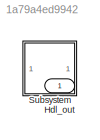
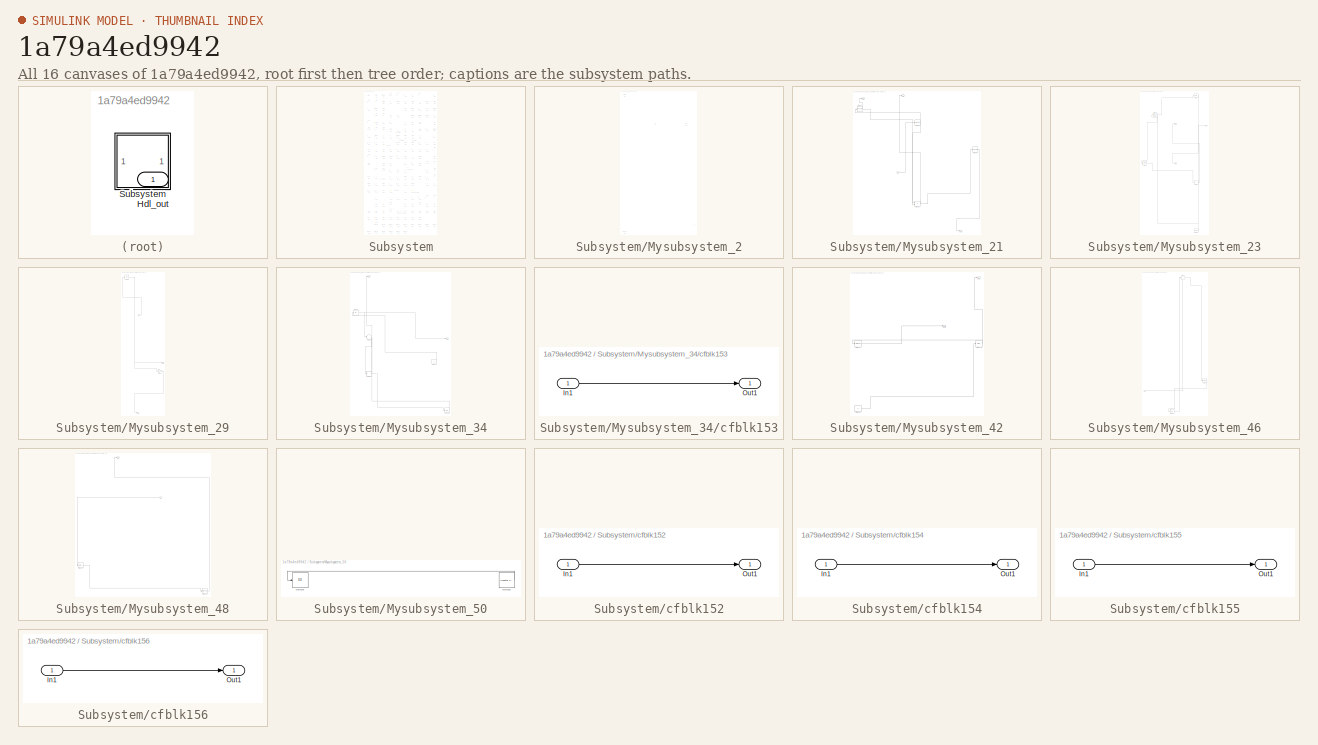
[diagram: thumbnail index - all 16 canvases of the model, root first then tree order]
MODEL slx_1a79a4ed9942
KIND model
CONFIG AbsTol = auto
CONFIG EnableMultiTasking = off
CONFIG FixedStep = auto
CONFIG MaxStep = auto
CONFIG MinStep = auto
CONFIG RelTol = 1e-3
CONFIG SampleTimeConstraint = Unconstrained
CONFIG SolverName = VariableStepAuto
CONFIG StartTime = 0.0
CONFIG StopTime = 10.0
BLOCK [Outport] Hdl_out
  OutDataTypeStr = uint8
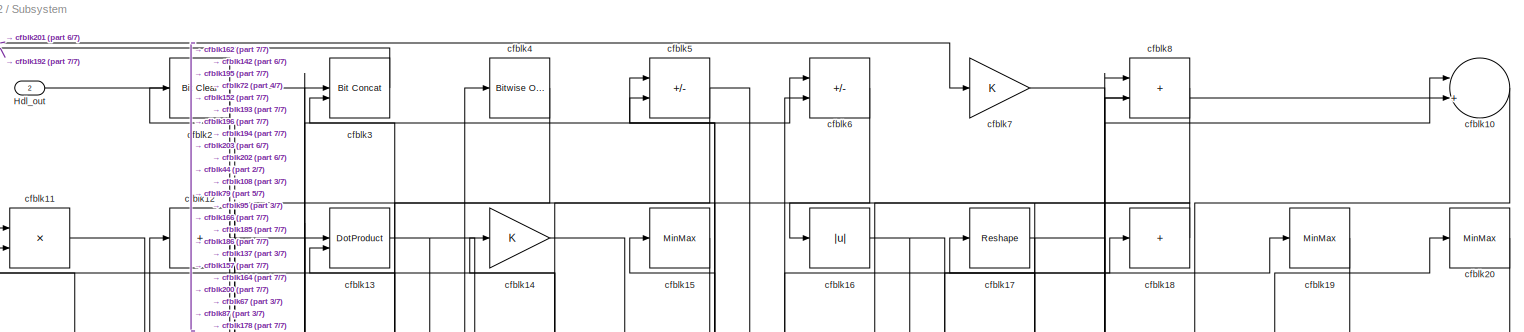
[diagram: Subsystem - part 1/7, full width, top band]
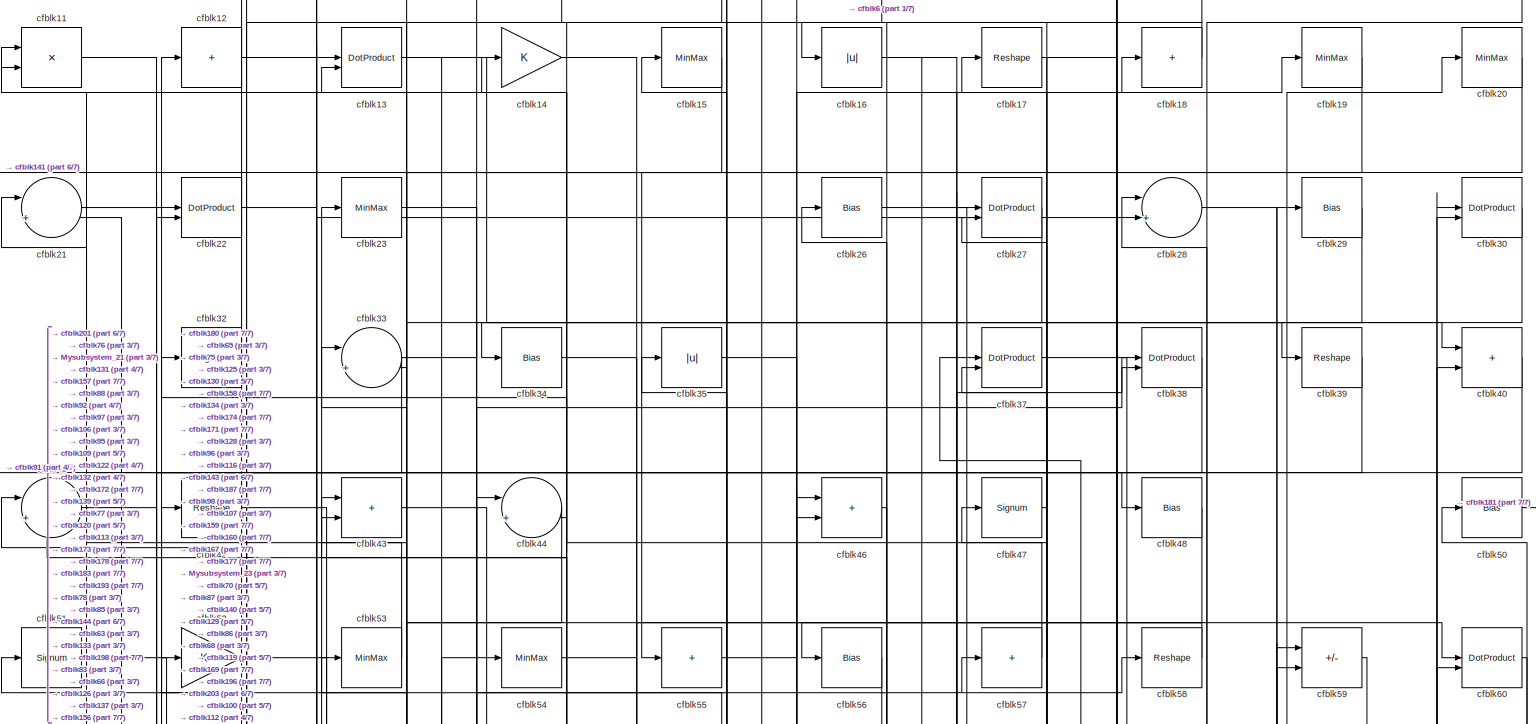
[diagram: Subsystem - part 2/7, full width, top band]
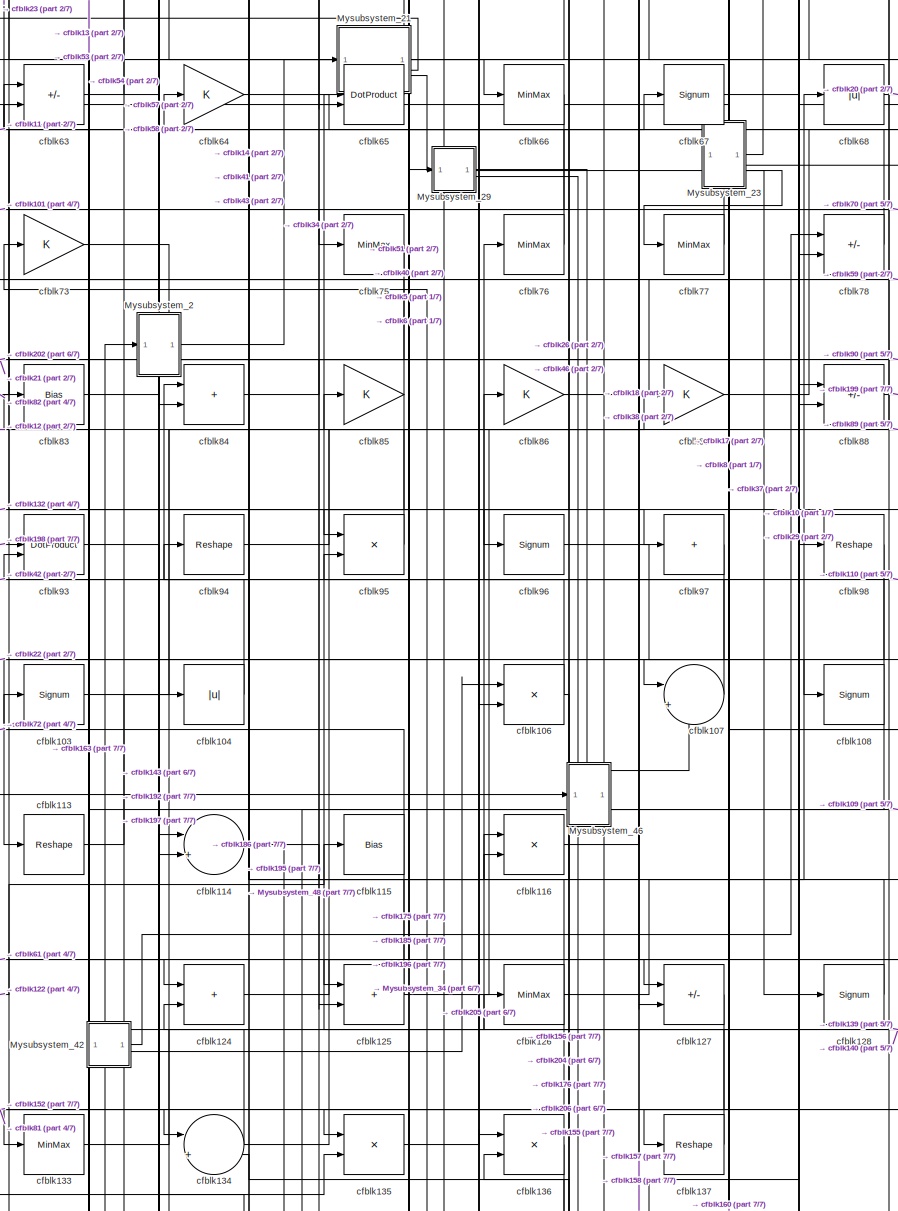
[diagram: Subsystem - part 3/7, central region]
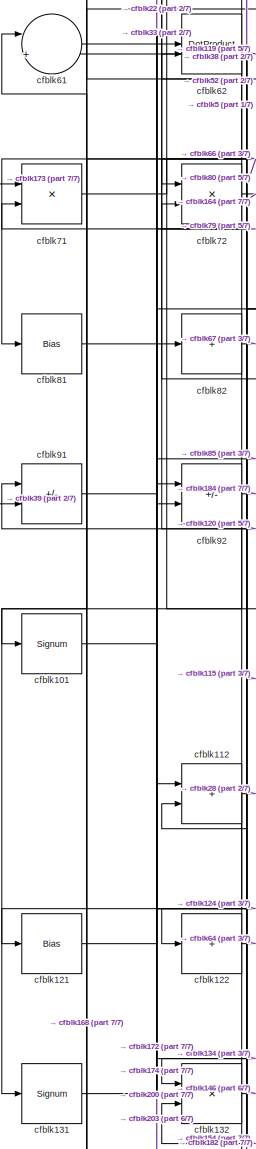
[diagram: Subsystem - part 4/7, middle left region]
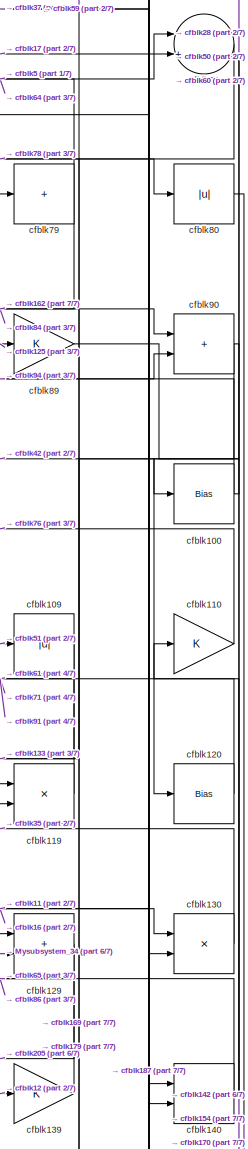
[diagram: Subsystem - part 5/7, middle right region]
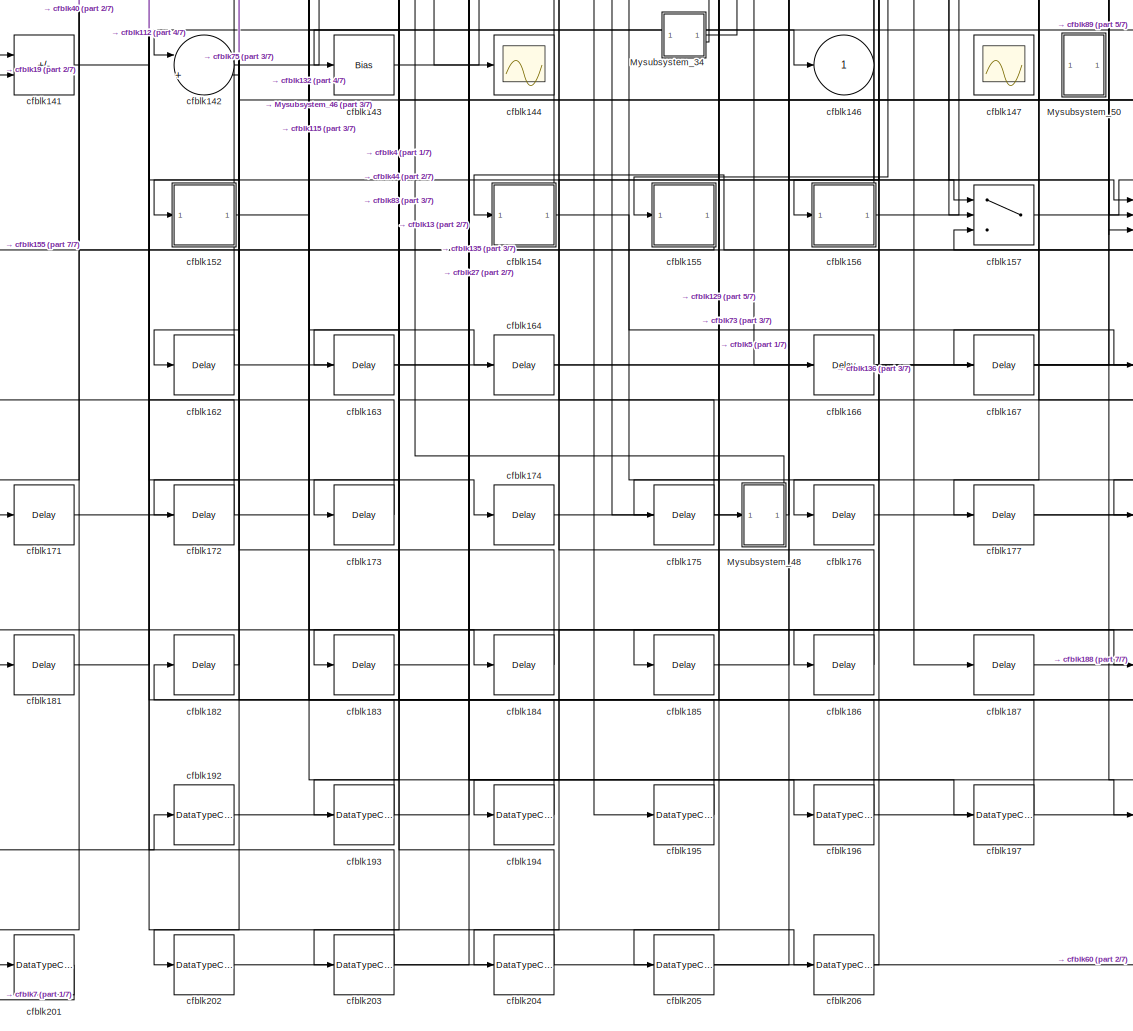
[diagram: Subsystem - part 6/7, bottom center region]
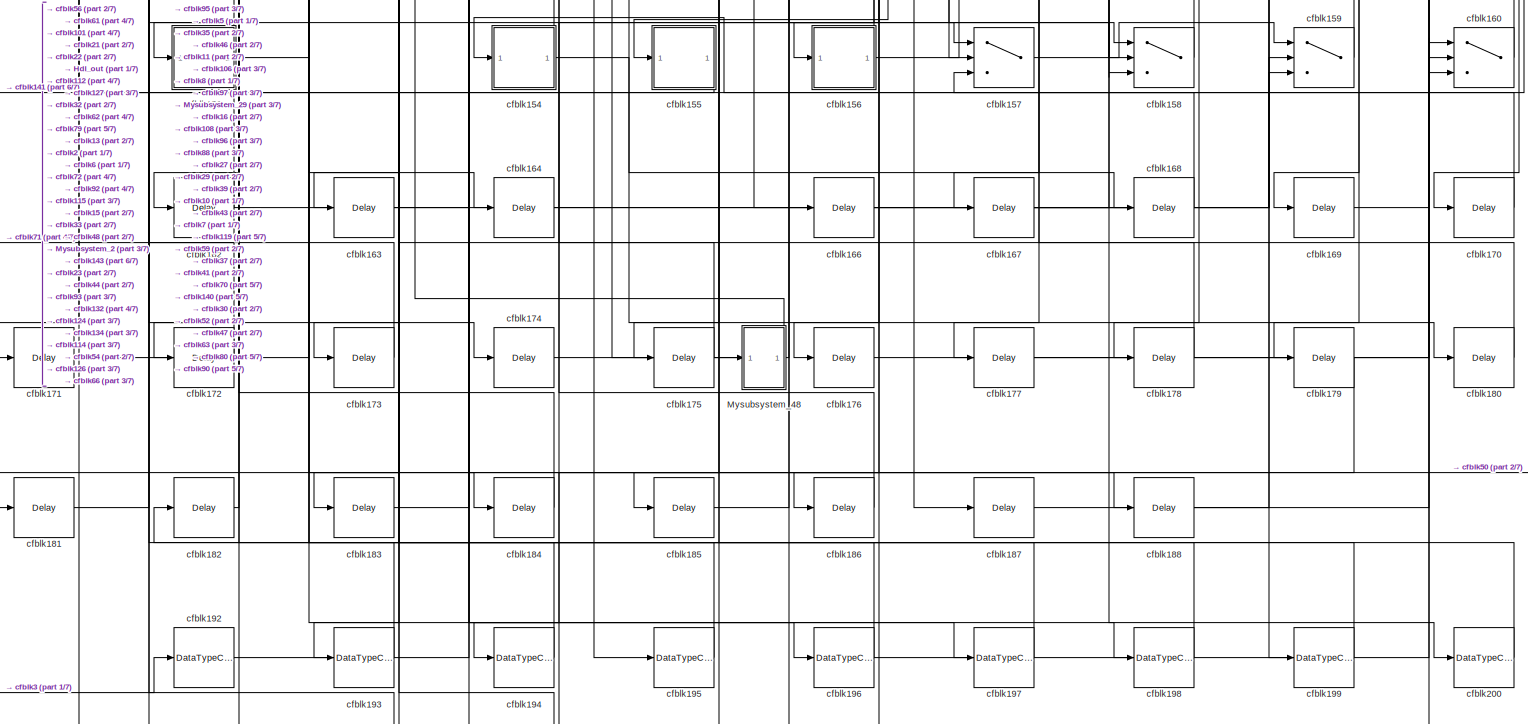
[diagram: Subsystem - part 7/7, full width, bottom band]
BLOCK [SubSystem] Subsystem
BLOCK [Outport] Subsystem/Hdl_out
  OutDataTypeStr = uint8
  Port = 2
BLOCK [SubSystem] Subsystem/Mysubsystem_2
  RTWFcnName = Mysubsystem_2
  RTWFcnNameOpts = User specified
  RTWFileNameOpts = Use function name
  RTWSystemCode = Reusable function
  TreatAsAtomicUnit = on
BLOCK [Inport] Subsystem/Mysubsystem_2/In1
BLOCK [Outport] Subsystem/Mysubsystem_2/Out1
BLOCK [Reference] Subsystem/Mysubsystem_2/cfblk1  REF=simulink/Logic and Bit
Operations/Bitwise
Operator
  LibrarySourceBlock = hdlsllib/Logic and Bit\nOperations/Bitwise\nOperator
  SourceBlock = simulink/Logic and Bit\nOperations/Bitwise\nOperator
  SourceType = Bitwise Operator
BLOCK [DataTypeConversion] Subsystem/Mysubsystem_2/cfblk191
  OutDataTypeStr = uint8
  RndMeth = Floor
  SaturateOnIntegerOverflow = off
BLOCK [Bias] Subsystem/Mysubsystem_2/cfblk49
  Bias = 0.0
  SaturateOnIntegerOverflow = off
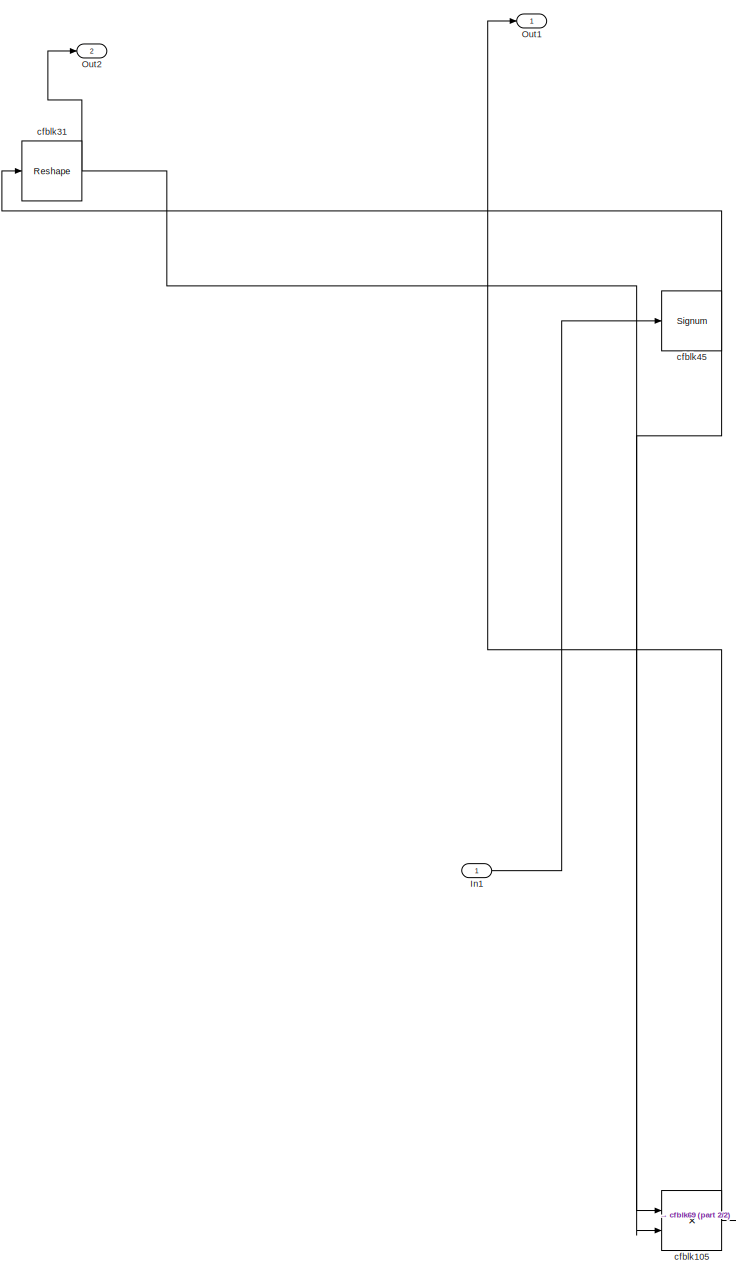
[diagram: Subsystem/Mysubsystem_21 - part 1/2, left side, full height]
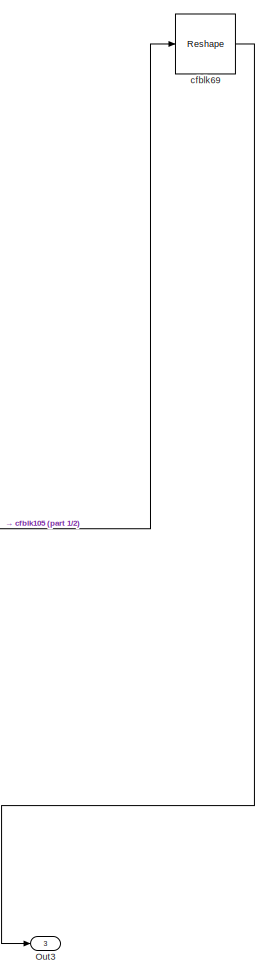
[diagram: Subsystem/Mysubsystem_21 - part 2/2, bottom right region]
BLOCK [SubSystem] Subsystem/Mysubsystem_21
  RTWFcnName = Mysubsystem_21
  RTWFcnNameOpts = User specified
  RTWFileNameOpts = Use function name
  RTWSystemCode = Reusable function
  TreatAsAtomicUnit = on
BLOCK [Inport] Subsystem/Mysubsystem_21/In1
BLOCK [Outport] Subsystem/Mysubsystem_21/Out1
BLOCK [Outport] Subsystem/Mysubsystem_21/Out2
  Port = 2
BLOCK [Outport] Subsystem/Mysubsystem_21/Out3
  Port = 3
BLOCK [Product] Subsystem/Mysubsystem_21/cfblk105
  Inputs = */
  RndMeth = Zero
  SaturateOnIntegerOverflow = on
BLOCK [Reshape] Subsystem/Mysubsystem_21/cfblk31
BLOCK [Signum] Subsystem/Mysubsystem_21/cfblk45
BLOCK [Reshape] Subsystem/Mysubsystem_21/cfblk69
BLOCK [SubSystem] Subsystem/Mysubsystem_23
  RTWFcnName = Mysubsystem_23
  RTWFcnNameOpts = User specified
  RTWFileNameOpts = Use function name
  RTWSystemCode = Reusable function
  TreatAsAtomicUnit = on
BLOCK [Outport] Subsystem/Mysubsystem_23/Out1
BLOCK [Outport] Subsystem/Mysubsystem_23/Out3
  Port = 3
BLOCK [Reference] Subsystem/Mysubsystem_23/cfblk149  REF=hdlsllib/Sources/Counter
Limited
  SourceBlock = hdlsllib/Sources/Counter\nLimited
  SourceType = Counter Limited
BLOCK [MinMax] Subsystem/Mysubsystem_23/cfblk25
BLOCK [Signum] Subsystem/Mysubsystem_23/cfblk74
BLOCK [Bias] Subsystem/Mysubsystem_23/cfblk9
  Bias = 0.0
  SaturateOnIntegerOverflow = off
BLOCK [Sum] Subsystem/Mysubsystem_23/cfblk99
  IconShape = rectangular
  Inputs = +
BLOCK [Outport] Subsystem/Mysubsystem_23/y
  Port = 2
BLOCK [SubSystem] Subsystem/Mysubsystem_29
  RTWFcnName = Mysubsystem_29
  RTWFcnNameOpts = User specified
  RTWFileNameOpts = Use function name
  RTWSystemCode = Reusable function
  TreatAsAtomicUnit = on
BLOCK [Inport] Subsystem/Mysubsystem_29/In1
BLOCK [Outport] Subsystem/Mysubsystem_29/Out1
BLOCK [Outport] Subsystem/Mysubsystem_29/Out2
  Port = 2
BLOCK [Gain] Subsystem/Mysubsystem_29/cfblk117
BLOCK [Bias] Subsystem/Mysubsystem_29/cfblk24
  Bias = 0.0
  SaturateOnIntegerOverflow = off
BLOCK [SubSystem] Subsystem/Mysubsystem_34
  RTWFcnName = Mysubsystem_34
  RTWFcnNameOpts = User specified
  RTWFileNameOpts = Use function name
  RTWSystemCode = Reusable function
  TreatAsAtomicUnit = on
BLOCK [Outport] Subsystem/Mysubsystem_34/Out1
BLOCK [Outport] Subsystem/Mysubsystem_34/Out2
  Port = 2
BLOCK [Abs] Subsystem/Mysubsystem_34/cfblk102
  SaturateOnIntegerOverflow = off
BLOCK [Sum] Subsystem/Mysubsystem_34/cfblk123
  Inputs = |++
BLOCK [Constant] Subsystem/Mysubsystem_34/cfblk148
  SampleTime = -1
BLOCK [SubSystem] Subsystem/Mysubsystem_34/cfblk153
  LibrarySourceBlock = hdlsllib/Ports &\nSubsystems/Subsystem
BLOCK [Inport] Subsystem/Mysubsystem_34/cfblk153/In1
BLOCK [Outport] Subsystem/Mysubsystem_34/cfblk153/Out1
BLOCK [Delay] Subsystem/Mysubsystem_34/cfblk189
  InputPortMap = u0
  SampleTime = 1
BLOCK [SubSystem] Subsystem/Mysubsystem_42
  RTWFcnName = Mysubsystem_42
  RTWFcnNameOpts = User specified
  RTWFileNameOpts = Use function name
  RTWSystemCode = Reusable function
  TreatAsAtomicUnit = on
BLOCK [Outport] Subsystem/Mysubsystem_42/Out1
BLOCK [Outport] Subsystem/Mysubsystem_42/Out2
  Port = 2
BLOCK [Signum] Subsystem/Mysubsystem_42/cfblk111
BLOCK [Bias] Subsystem/Mysubsystem_42/cfblk118
  Bias = 0.0
  SaturateOnIntegerOverflow = off
BLOCK [Constant] Subsystem/Mysubsystem_42/cfblk151
  SampleTime = -1
BLOCK [SubSystem] Subsystem/Mysubsystem_46
  RTWFcnName = Mysubsystem_46
  RTWFcnNameOpts = User specified
  RTWFileNameOpts = Use function name
  RTWSystemCode = Reusable function
  TreatAsAtomicUnit = on
BLOCK [Inport] Subsystem/Mysubsystem_46/In1
BLOCK [Signum] Subsystem/Mysubsystem_46/cfblk138
BLOCK [Delay] Subsystem/Mysubsystem_46/cfblk165
  InputPortMap = u0
  SampleTime = 1
BLOCK [Sum] Subsystem/Mysubsystem_46/cfblk36
  Inputs = |++
BLOCK [SubSystem] Subsystem/Mysubsystem_48
  RTWFcnName = Mysubsystem_48
  RTWFcnNameOpts = User specified
  RTWFileNameOpts = Use function name
  RTWSystemCode = Reusable function
  TreatAsAtomicUnit = on
BLOCK [Inport] Subsystem/Mysubsystem_48/In1
BLOCK [Outport] Subsystem/Mysubsystem_48/Out1
BLOCK [Delay] Subsystem/Mysubsystem_48/cfblk161
  InputPortMap = u0
  SampleTime = 1
BLOCK [DataTypeConversion] Subsystem/Mysubsystem_48/cfblk190
  OutDataTypeStr = boolean
  RndMeth = Floor
  SaturateOnIntegerOverflow = off
BLOCK [SubSystem] Subsystem/Mysubsystem_50
  RTWFcnName = Mysubsystem_50
  RTWFcnNameOpts = User specified
  RTWFileNameOpts = Use function name
  RTWSystemCode = Reusable function
  TreatAsAtomicUnit = on
BLOCK [Display] Subsystem/Mysubsystem_50/cfblk145
  Decimation = 1
BLOCK [Reference] Subsystem/Mysubsystem_50/cfblk150  REF=hdlsllib/Sources/Counter
Free-Running
  SourceBlock = hdlsllib/Sources/Counter\nFree-Running
  SourceType = Counter Free-Running
BLOCK [Sum] Subsystem/cfblk10
  Inputs = |++
  OutDataTypeStr = uint8
BLOCK [Bias] Subsystem/cfblk100
  Bias = 0.0
  SaturateOnIntegerOverflow = off
BLOCK [Signum] Subsystem/cfblk101
BLOCK [Signum] Subsystem/cfblk103
BLOCK [Abs] Subsystem/cfblk104
  OutDataTypeStr = uint8
  SaturateOnIntegerOverflow = off
BLOCK [Product] Subsystem/cfblk106
  Inputs = */
  OutDataTypeStr = uint8
  RndMeth = Zero
  SaturateOnIntegerOverflow = on
BLOCK [Sum] Subsystem/cfblk107
  Inputs = |++
  OutDataTypeStr = uint8
BLOCK [Signum] Subsystem/cfblk108
BLOCK [Abs] Subsystem/cfblk109
  OutDataTypeStr = uint8
  SaturateOnIntegerOverflow = off
BLOCK [Product] Subsystem/cfblk11
  Inputs = */
  OutDataTypeStr = uint8
  RndMeth = Zero
  SaturateOnIntegerOverflow = on
BLOCK [Gain] Subsystem/cfblk110
  OutDataTypeStr = uint8
BLOCK [Sum] Subsystem/cfblk112
  IconShape = rectangular
  OutDataTypeStr = uint8
BLOCK [Reshape] Subsystem/cfblk113
BLOCK [Sum] Subsystem/cfblk114
  Inputs = |++
  OutDataTypeStr = uint8
BLOCK [Bias] Subsystem/cfblk115
  Bias = 0.0
  SaturateOnIntegerOverflow = off
BLOCK [Product] Subsystem/cfblk116
  Inputs = */
  OutDataTypeStr = uint8
  RndMeth = Zero
  SaturateOnIntegerOverflow = on
BLOCK [Product] Subsystem/cfblk119
  Inputs = */
  OutDataTypeStr = uint8
  RndMeth = Zero
  SaturateOnIntegerOverflow = on
BLOCK [Sum] Subsystem/cfblk12
  IconShape = rectangular
  Inputs = +
  OutDataTypeStr = uint8
BLOCK [Bias] Subsystem/cfblk120
  Bias = 0.0
  SaturateOnIntegerOverflow = off
BLOCK [Bias] Subsystem/cfblk121
  Bias = 0.0
  SaturateOnIntegerOverflow = off
BLOCK [Sum] Subsystem/cfblk122
  IconShape = rectangular
  Inputs = +
  OutDataTypeStr = uint8
BLOCK [Sum] Subsystem/cfblk124
  IconShape = rectangular
  OutDataTypeStr = uint8
BLOCK [Sum] Subsystem/cfblk125
  IconShape = rectangular
  OutDataTypeStr = uint8
BLOCK [MinMax] Subsystem/cfblk126
  OutDataTypeStr = uint8
BLOCK [Sum] Subsystem/cfblk127
  IconShape = rectangular
  Inputs = +-
  OutDataTypeStr = uint8
BLOCK [Signum] Subsystem/cfblk128
BLOCK [Sum] Subsystem/cfblk129
  IconShape = rectangular
  OutDataTypeStr = uint8
BLOCK [DotProduct] Subsystem/cfblk13
  OutDataTypeStr = uint8
BLOCK [Product] Subsystem/cfblk130
  Inputs = */
  OutDataTypeStr = uint8
  RndMeth = Zero
  SaturateOnIntegerOverflow = on
BLOCK [Signum] Subsystem/cfblk131
BLOCK [Product] Subsystem/cfblk132
  Inputs = */
  OutDataTypeStr = uint8
  RndMeth = Zero
  SaturateOnIntegerOverflow = on
BLOCK [MinMax] Subsystem/cfblk133
  OutDataTypeStr = uint8
BLOCK [Sum] Subsystem/cfblk134
  Inputs = |++
  OutDataTypeStr = uint8
BLOCK [Product] Subsystem/cfblk135
  Inputs = */
  OutDataTypeStr = uint8
  RndMeth = Zero
  SaturateOnIntegerOverflow = on
BLOCK [Product] Subsystem/cfblk136
  Inputs = */
  OutDataTypeStr = uint8
  RndMeth = Zero
  SaturateOnIntegerOverflow = on
BLOCK [Reshape] Subsystem/cfblk137
BLOCK [Gain] Subsystem/cfblk139
  OutDataTypeStr = uint8
BLOCK [Gain] Subsystem/cfblk14
  OutDataTypeStr = uint8
BLOCK [Sum] Subsystem/cfblk140
  IconShape = rectangular
  OutDataTypeStr = uint8
BLOCK [Sum] Subsystem/cfblk141
  IconShape = rectangular
  Inputs = +-
  OutDataTypeStr = uint8
BLOCK [Sum] Subsystem/cfblk142
  Inputs = |++
  OutDataTypeStr = uint8
BLOCK [Bias] Subsystem/cfblk143
  Bias = 0.0
  SaturateOnIntegerOverflow = off
BLOCK [Scope] Subsystem/cfblk144
  Floating = off
  NumInputPorts = 1
  ScopeSpecificationString = Simulink.scopes.TimeScopeBlockCfg('CurrentConfiguration', extmgr.ConfigurationSet(extmgr.Configuration('Core','General UI',true),extmgr.Configuration('Core','Source UI',true),extmgr.Configuration('Sources','WiredSimulink',true,'DataLoggingVariableName','ScopeData1','DataLoggingSaveFormat','Array','DataLoggingLimitDataPoints',true,'DataLoggingDecimation','1'),extmgr.Configuration('Visuals','Time Do...<+868ch>
BLOCK [Outport] Subsystem/cfblk146
  OutDataTypeStr = uint8
  VectorParamsAs1DForOutWhenUnconnected = off
BLOCK [Scope] Subsystem/cfblk147
  Floating = on
  NumInputPorts = 1
  ScopeSpecificationString = Simulink.scopes.TimeScopeBlockCfg('CurrentConfiguration', extmgr.ConfigurationSet(extmgr.Configuration('Core','General UI',true,'FigureColor',[0.156862745098039 0.156862745098039 0.156862745098039]),extmgr.Configuration('Core','Source UI',true),extmgr.Configuration('Sources','WiredSimulink',true,'DataLoggingSaveFormat','StructureWithTime','DataLoggingLimitDataPoints',true,'DataLoggingDecimation','...<+2674ch>
BLOCK [MinMax] Subsystem/cfblk15
  OutDataTypeStr = uint8
BLOCK [SubSystem] Subsystem/cfblk152
  LibrarySourceBlock = hdlsllib/Ports &\nSubsystems/Subsystem
BLOCK [Inport] Subsystem/cfblk152/In1
BLOCK [Outport] Subsystem/cfblk152/Out1
BLOCK [SubSystem] Subsystem/cfblk154
  LibrarySourceBlock = hdlsllib/Ports &\nSubsystems/Subsystem
BLOCK [Inport] Subsystem/cfblk154/In1
BLOCK [Outport] Subsystem/cfblk154/Out1
BLOCK [SubSystem] Subsystem/cfblk155
  LibrarySourceBlock = hdlsllib/Ports &\nSubsystems/Subsystem
BLOCK [Inport] Subsystem/cfblk155/In1
BLOCK [Outport] Subsystem/cfblk155/Out1
BLOCK [SubSystem] Subsystem/cfblk156
  LibrarySourceBlock = hdlsllib/Ports &\nSubsystems/Subsystem
BLOCK [Inport] Subsystem/cfblk156/In1
BLOCK [Outport] Subsystem/cfblk156/Out1
BLOCK [Switch] Subsystem/cfblk157
  InputSameDT = off
  OutDataTypeStr = uint8
  SaturateOnIntegerOverflow = off
BLOCK [Switch] Subsystem/cfblk158
  InputSameDT = off
  OutDataTypeStr = uint8
  SaturateOnIntegerOverflow = off
BLOCK [Switch] Subsystem/cfblk159
  InputSameDT = off
  OutDataTypeStr = uint8
  SaturateOnIntegerOverflow = off
BLOCK [Abs] Subsystem/cfblk16
  OutDataTypeStr = uint8
  SaturateOnIntegerOverflow = off
BLOCK [Switch] Subsystem/cfblk160
  InputSameDT = off
  OutDataTypeStr = uint8
  SaturateOnIntegerOverflow = off
BLOCK [Delay] Subsystem/cfblk162
  InputPortMap = u0
  SampleTime = 1
BLOCK [Delay] Subsystem/cfblk163
  InputPortMap = u0
  SampleTime = 1
BLOCK [Delay] Subsystem/cfblk164
  InputPortMap = u0
  SampleTime = 1
BLOCK [Delay] Subsystem/cfblk166
  InputPortMap = u0
  SampleTime = 1
BLOCK [Delay] Subsystem/cfblk167
  InputPortMap = u0
  SampleTime = 1
BLOCK [Delay] Subsystem/cfblk168
  InputPortMap = u0
  SampleTime = 1
BLOCK [Delay] Subsystem/cfblk169
  InputPortMap = u0
  SampleTime = 1
BLOCK [Reshape] Subsystem/cfblk17
BLOCK [Delay] Subsystem/cfblk170
  InputPortMap = u0
  SampleTime = 1
BLOCK [Delay] Subsystem/cfblk171
  InputPortMap = u0
  SampleTime = 1
BLOCK [Delay] Subsystem/cfblk172
  InputPortMap = u0
  SampleTime = 1
BLOCK [Delay] Subsystem/cfblk173
  InputPortMap = u0
  SampleTime = 1
BLOCK [Delay] Subsystem/cfblk174
  InputPortMap = u0
  SampleTime = 1
BLOCK [Delay] Subsystem/cfblk175
  InputPortMap = u0
  SampleTime = 1
BLOCK [Delay] Subsystem/cfblk176
  InputPortMap = u0
  SampleTime = 1
BLOCK [Delay] Subsystem/cfblk177
  InputPortMap = u0
  SampleTime = 1
BLOCK [Delay] Subsystem/cfblk178
  InputPortMap = u0
  SampleTime = 1
BLOCK [Delay] Subsystem/cfblk179
  InputPortMap = u0
  SampleTime = 1
BLOCK [Sum] Subsystem/cfblk18
  IconShape = rectangular
  Inputs = +
  OutDataTypeStr = uint8
BLOCK [Delay] Subsystem/cfblk180
  InputPortMap = u0
  SampleTime = 1
BLOCK [Delay] Subsystem/cfblk181
  InputPortMap = u0
  SampleTime = 1
BLOCK [Delay] Subsystem/cfblk182
  InputPortMap = u0
  SampleTime = 1
BLOCK [Delay] Subsystem/cfblk183
  InputPortMap = u0
  SampleTime = 1
BLOCK [Delay] Subsystem/cfblk184
  InputPortMap = u0
  SampleTime = 1
BLOCK [Delay] Subsystem/cfblk185
  InputPortMap = u0
  SampleTime = 1
BLOCK [Delay] Subsystem/cfblk186
  InputPortMap = u0
  SampleTime = 1
BLOCK [Delay] Subsystem/cfblk187
  InputPortMap = u0
  SampleTime = 1
BLOCK [Delay] Subsystem/cfblk188
  InputPortMap = u0
  SampleTime = 1
BLOCK [MinMax] Subsystem/cfblk19
  OutDataTypeStr = uint8
BLOCK [DataTypeConversion] Subsystem/cfblk192
  OutDataTypeStr = uint8
  RndMeth = Floor
  SaturateOnIntegerOverflow = off
BLOCK [DataTypeConversion] Subsystem/cfblk193
  OutDataTypeStr = uint8
  RndMeth = Floor
  SaturateOnIntegerOverflow = off
BLOCK [DataTypeConversion] Subsystem/cfblk194
  OutDataTypeStr = uint8
  RndMeth = Floor
  SaturateOnIntegerOverflow = off
BLOCK [DataTypeConversion] Subsystem/cfblk195
  OutDataTypeStr = uint8
  RndMeth = Floor
  SaturateOnIntegerOverflow = off
BLOCK [DataTypeConversion] Subsystem/cfblk196
  OutDataTypeStr = uint8
  RndMeth = Floor
  SaturateOnIntegerOverflow = off
BLOCK [DataTypeConversion] Subsystem/cfblk197
  OutDataTypeStr = uint8
  RndMeth = Floor
  SaturateOnIntegerOverflow = off
BLOCK [DataTypeConversion] Subsystem/cfblk198
  OutDataTypeStr = uint8
  RndMeth = Floor
  SaturateOnIntegerOverflow = off
BLOCK [DataTypeConversion] Subsystem/cfblk199
  OutDataTypeStr = uint8
  RndMeth = Floor
  SaturateOnIntegerOverflow = off
BLOCK [Reference] Subsystem/cfblk2  REF=simulink/Logic and Bit
Operations/Bit Clear
  LibrarySourceBlock = hdlsllib/Logic and Bit\nOperations/Bit Clear
  SourceBlock = simulink/Logic and Bit\nOperations/Bit Clear
  SourceType = Bit Clear
BLOCK [MinMax] Subsystem/cfblk20
  OutDataTypeStr = uint8
BLOCK [DataTypeConversion] Subsystem/cfblk200
  OutDataTypeStr = uint8
  RndMeth = Floor
  SaturateOnIntegerOverflow = off
BLOCK [DataTypeConversion] Subsystem/cfblk201
  OutDataTypeStr = uint8
  RndMeth = Floor
  SaturateOnIntegerOverflow = off
BLOCK [DataTypeConversion] Subsystem/cfblk202
  OutDataTypeStr = uint8
  RndMeth = Floor
  SaturateOnIntegerOverflow = off
BLOCK [DataTypeConversion] Subsystem/cfblk203
  OutDataTypeStr = uint8
  RndMeth = Floor
  SaturateOnIntegerOverflow = off
BLOCK [DataTypeConversion] Subsystem/cfblk204
  OutDataTypeStr = uint8
  RndMeth = Floor
  SaturateOnIntegerOverflow = off
BLOCK [DataTypeConversion] Subsystem/cfblk205
  OutDataTypeStr = uint8
  RndMeth = Floor
  SaturateOnIntegerOverflow = off
BLOCK [DataTypeConversion] Subsystem/cfblk206
  OutDataTypeStr = uint8
  RndMeth = Floor
  SaturateOnIntegerOverflow = off
BLOCK [Sum] Subsystem/cfblk21
  Inputs = |++
  OutDataTypeStr = uint8
BLOCK [DotProduct] Subsystem/cfblk22
  OutDataTypeStr = uint8
BLOCK [MinMax] Subsystem/cfblk23
  OutDataTypeStr = uint8
BLOCK [Bias] Subsystem/cfblk26
  Bias = 0.0
  SaturateOnIntegerOverflow = off
BLOCK [DotProduct] Subsystem/cfblk27
  OutDataTypeStr = uint8
BLOCK [Sum] Subsystem/cfblk28
  Inputs = |++
  OutDataTypeStr = uint8
BLOCK [Bias] Subsystem/cfblk29
  Bias = 0.0
  SaturateOnIntegerOverflow = off
BLOCK [Reference] Subsystem/cfblk3  REF=hdlsllib/Logic and Bit
Operations/Bit Concat
  SourceBlock = hdlsllib/Logic and Bit\nOperations/Bit Concat
  SourceType = Bit Concat
BLOCK [DotProduct] Subsystem/cfblk30
  OutDataTypeStr = uint8
BLOCK [Signum] Subsystem/cfblk32
BLOCK [Sum] Subsystem/cfblk33
  Inputs = |++
  OutDataTypeStr = uint8
BLOCK [Bias] Subsystem/cfblk34
  Bias = 0.0
  SaturateOnIntegerOverflow = off
BLOCK [Abs] Subsystem/cfblk35
  OutDataTypeStr = uint8
  SaturateOnIntegerOverflow = off
BLOCK [DotProduct] Subsystem/cfblk37
  OutDataTypeStr = uint8
BLOCK [DotProduct] Subsystem/cfblk38
  OutDataTypeStr = uint8
BLOCK [Reshape] Subsystem/cfblk39
BLOCK [Reference] Subsystem/cfblk4  REF=simulink/Logic and Bit
Operations/Bitwise
Operator
  LibrarySourceBlock = hdlsllib/Logic and Bit\nOperations/Bitwise\nOperator
  SourceBlock = simulink/Logic and Bit\nOperations/Bitwise\nOperator
  SourceType = Bitwise Operator
BLOCK [Sum] Subsystem/cfblk40
  IconShape = rectangular
  OutDataTypeStr = uint8
BLOCK [Sum] Subsystem/cfblk41
  Inputs = |++
  OutDataTypeStr = uint8
BLOCK [Reshape] Subsystem/cfblk42
BLOCK [Sum] Subsystem/cfblk43
  IconShape = rectangular
  OutDataTypeStr = uint8
BLOCK [Sum] Subsystem/cfblk44
  Inputs = |++
  OutDataTypeStr = uint8
BLOCK [Sum] Subsystem/cfblk46
  IconShape = rectangular
  OutDataTypeStr = uint8
BLOCK [Signum] Subsystem/cfblk47
BLOCK [Bias] Subsystem/cfblk48
  Bias = 0.0
  SaturateOnIntegerOverflow = off
BLOCK [Sum] Subsystem/cfblk5
  IconShape = rectangular
  Inputs = +-
  OutDataTypeStr = uint8
BLOCK [Bias] Subsystem/cfblk50
  Bias = 0.0
  SaturateOnIntegerOverflow = off
BLOCK [Signum] Subsystem/cfblk51
BLOCK [Gain] Subsystem/cfblk52
  OutDataTypeStr = uint8
BLOCK [MinMax] Subsystem/cfblk53
  OutDataTypeStr = uint8
BLOCK [MinMax] Subsystem/cfblk54
  OutDataTypeStr = uint8
BLOCK [Sum] Subsystem/cfblk55
  IconShape = rectangular
  Inputs = +
  OutDataTypeStr = uint8
BLOCK [Bias] Subsystem/cfblk56
  Bias = 0.0
  SaturateOnIntegerOverflow = off
BLOCK [Sum] Subsystem/cfblk57
  IconShape = rectangular
  Inputs = +
  OutDataTypeStr = uint8
BLOCK [Reshape] Subsystem/cfblk58
BLOCK [Sum] Subsystem/cfblk59
  IconShape = rectangular
  Inputs = +-
  OutDataTypeStr = uint8
BLOCK [Sum] Subsystem/cfblk6
  IconShape = rectangular
  Inputs = +-
  OutDataTypeStr = uint8
BLOCK [DotProduct] Subsystem/cfblk60
  OutDataTypeStr = uint8
BLOCK [Sum] Subsystem/cfblk61
  Inputs = |++
  OutDataTypeStr = uint8
BLOCK [DotProduct] Subsystem/cfblk62
  OutDataTypeStr = uint8
BLOCK [Sum] Subsystem/cfblk63
  IconShape = rectangular
  Inputs = +-
  OutDataTypeStr = uint8
BLOCK [Gain] Subsystem/cfblk64
  OutDataTypeStr = uint8
BLOCK [DotProduct] Subsystem/cfblk65
  OutDataTypeStr = uint8
BLOCK [MinMax] Subsystem/cfblk66
  OutDataTypeStr = uint8
BLOCK [Signum] Subsystem/cfblk67
BLOCK [Abs] Subsystem/cfblk68
  OutDataTypeStr = uint8
  SaturateOnIntegerOverflow = off
BLOCK [Gain] Subsystem/cfblk7
  OutDataTypeStr = uint8
BLOCK [Sum] Subsystem/cfblk70
  Inputs = |++
  OutDataTypeStr = uint8
BLOCK [Product] Subsystem/cfblk71
  Inputs = */
  OutDataTypeStr = uint8
  RndMeth = Zero
  SaturateOnIntegerOverflow = on
BLOCK [Product] Subsystem/cfblk72
  Inputs = */
  OutDataTypeStr = uint8
  RndMeth = Zero
  SaturateOnIntegerOverflow = on
BLOCK [Gain] Subsystem/cfblk73
  OutDataTypeStr = uint8
BLOCK [MinMax] Subsystem/cfblk75
  OutDataTypeStr = uint8
BLOCK [MinMax] Subsystem/cfblk76
  OutDataTypeStr = uint8
BLOCK [MinMax] Subsystem/cfblk77
  OutDataTypeStr = uint8
BLOCK [Sum] Subsystem/cfblk78
  IconShape = rectangular
  Inputs = +-
  OutDataTypeStr = uint8
BLOCK [Sum] Subsystem/cfblk79
  IconShape = rectangular
  Inputs = +
  OutDataTypeStr = uint8
BLOCK [Sum] Subsystem/cfblk8
  IconShape = rectangular
  OutDataTypeStr = uint8
BLOCK [Abs] Subsystem/cfblk80
  OutDataTypeStr = uint8
  SaturateOnIntegerOverflow = off
BLOCK [Bias] Subsystem/cfblk81
  Bias = 0.0
  SaturateOnIntegerOverflow = off
BLOCK [Sum] Subsystem/cfblk82
  IconShape = rectangular
  Inputs = +
  OutDataTypeStr = uint8
BLOCK [Bias] Subsystem/cfblk83
  Bias = 0.0
  SaturateOnIntegerOverflow = off
BLOCK [Sum] Subsystem/cfblk84
  IconShape = rectangular
  OutDataTypeStr = uint8
BLOCK [Gain] Subsystem/cfblk85
  OutDataTypeStr = uint8
BLOCK [Gain] Subsystem/cfblk86
  OutDataTypeStr = uint8
BLOCK [Gain] Subsystem/cfblk87
  OutDataTypeStr = uint8
BLOCK [Sum] Subsystem/cfblk88
  IconShape = rectangular
  Inputs = +-
  OutDataTypeStr = uint8
BLOCK [Gain] Subsystem/cfblk89
  OutDataTypeStr = uint8
BLOCK [Sum] Subsystem/cfblk90
  IconShape = rectangular
  OutDataTypeStr = uint8
BLOCK [Sum] Subsystem/cfblk91
  IconShape = rectangular
  Inputs = +-
  OutDataTypeStr = uint8
BLOCK [Sum] Subsystem/cfblk92
  IconShape = rectangular
  Inputs = +-
  OutDataTypeStr = uint8
BLOCK [DotProduct] Subsystem/cfblk93
  OutDataTypeStr = uint8
BLOCK [Reshape] Subsystem/cfblk94
BLOCK [Product] Subsystem/cfblk95
  Inputs = */
  OutDataTypeStr = uint8
  RndMeth = Zero
  SaturateOnIntegerOverflow = on
BLOCK [Signum] Subsystem/cfblk96
BLOCK [Sum] Subsystem/cfblk97
  IconShape = rectangular
  Inputs = +
  OutDataTypeStr = uint8
BLOCK [Reshape] Subsystem/cfblk98
LINE Subsystem/Mysubsystem_2/In1:1 -> Subsystem/Mysubsystem_2/cfblk1:1
LINE Subsystem/Mysubsystem_2/cfblk191:1 -> Subsystem/Mysubsystem_2/cfblk49:1
LINE Subsystem/Mysubsystem_2/cfblk1:1 -> Subsystem/Mysubsystem_2/cfblk191:1
LINE Subsystem/Mysubsystem_2/cfblk49:1 -> Subsystem/Mysubsystem_2/Out1:1
LINE Subsystem/Mysubsystem_21/In1:1 -> Subsystem/Mysubsystem_21/cfblk45:1
NET Subsystem/Mysubsystem_21/cfblk105:1 -> Subsystem/Mysubsystem_21/Out1:1, Subsystem/Mysubsystem_21/cfblk69:1
NET Subsystem/Mysubsystem_21/cfblk31:1 -> Subsystem/Mysubsystem_21/Out2:1, Subsystem/Mysubsystem_21/cfblk105:1
NET Subsystem/Mysubsystem_21/cfblk45:1 -> Subsystem/Mysubsystem_21/cfblk105:2, Subsystem/Mysubsystem_21/cfblk31:1
LINE Subsystem/Mysubsystem_21/cfblk69:1 -> Subsystem/Mysubsystem_21/Out3:1
LINE Subsystem/Mysubsystem_21:1 -> Subsystem/Mysubsystem_29:1
LINE Subsystem/Mysubsystem_21:2 -> Subsystem/cfblk21:2
LINE Subsystem/Mysubsystem_21:3 -> Subsystem/cfblk128:1
NET Subsystem/Mysubsystem_23/cfblk149:1 -> Subsystem/Mysubsystem_23/cfblk25:1, Subsystem/Mysubsystem_23/y:1
NET Subsystem/Mysubsystem_23/cfblk25:1 -> Subsystem/Mysubsystem_23/cfblk74:1, Subsystem/Mysubsystem_23/cfblk9:1
LINE Subsystem/Mysubsystem_23/cfblk74:1 -> Subsystem/Mysubsystem_23/cfblk99:1
LINE Subsystem/Mysubsystem_23/cfblk99:1 -> Subsystem/Mysubsystem_23/Out1:1
LINE Subsystem/Mysubsystem_23/cfblk9:1 -> Subsystem/Mysubsystem_23/Out3:1
LINE Subsystem/Mysubsystem_23:1 -> Subsystem/cfblk37:1
LINE Subsystem/Mysubsystem_23:2 -> Subsystem/cfblk40:2
LINE Subsystem/Mysubsystem_23:3 -> Subsystem/cfblk77:1
LINE Subsystem/Mysubsystem_29/In1:1 -> Subsystem/Mysubsystem_29/cfblk24:1
LINE Subsystem/Mysubsystem_29/cfblk117:1 -> Subsystem/Mysubsystem_29/Out2:1
NET Subsystem/Mysubsystem_29/cfblk24:1 -> Subsystem/Mysubsystem_29/Out1:1, Subsystem/Mysubsystem_29/cfblk117:1
LINE Subsystem/Mysubsystem_29:1 -> Subsystem/cfblk107:2
LINE Subsystem/Mysubsystem_29:2 -> Subsystem/cfblk155:1
LINE Subsystem/Mysubsystem_2:1 -> Subsystem/Mysubsystem_21:1
NET Subsystem/Mysubsystem_34/cfblk102:1 -> Subsystem/Mysubsystem_34/Out2:1, Subsystem/Mysubsystem_34/cfblk123:1
LINE Subsystem/Mysubsystem_34/cfblk123:1 -> Subsystem/Mysubsystem_34/cfblk153:1
LINE Subsystem/Mysubsystem_34/cfblk148:1 -> Subsystem/Mysubsystem_34/cfblk102:1
LINE Subsystem/Mysubsystem_34/cfblk153/In1:1 -> Subsystem/Mysubsystem_34/cfblk153/Out1:1
NET Subsystem/Mysubsystem_34/cfblk153:1 -> Subsystem/Mysubsystem_34/Out1:1, Subsystem/Mysubsystem_34/cfblk189:1
LINE Subsystem/Mysubsystem_34/cfblk189:1 -> Subsystem/Mysubsystem_34/cfblk123:2
LINE Subsystem/Mysubsystem_34:1 -> Subsystem/cfblk73:1
LINE Subsystem/Mysubsystem_34:2 -> Subsystem/cfblk129:2
LINE Subsystem/Mysubsystem_42/cfblk111:1 -> Subsystem/Mysubsystem_42/Out2:1
NET Subsystem/Mysubsystem_42/cfblk118:1 -> Subsystem/Mysubsystem_42/Out1:1, Subsystem/Mysubsystem_42/cfblk111:1
LINE Subsystem/Mysubsystem_42/cfblk151:1 -> Subsystem/Mysubsystem_42/cfblk118:1
LINE Subsystem/Mysubsystem_42:1 -> Subsystem/cfblk78:1
LINE Subsystem/Mysubsystem_42:2 -> Subsystem/cfblk106:1
LINE Subsystem/Mysubsystem_46/In1:1 -> Subsystem/Mysubsystem_46/cfblk36:2
LINE Subsystem/Mysubsystem_46/cfblk138:1 -> Subsystem/Mysubsystem_46/cfblk165:1
LINE Subsystem/Mysubsystem_46/cfblk165:1 -> Subsystem/Mysubsystem_46/cfblk36:1
LINE Subsystem/Mysubsystem_46/cfblk36:1 -> Subsystem/Mysubsystem_46/cfblk138:1
LINE Subsystem/Mysubsystem_48/In1:1 -> Subsystem/Mysubsystem_48/cfblk161:1
LINE Subsystem/Mysubsystem_48/cfblk161:1 -> Subsystem/Mysubsystem_48/cfblk190:1
LINE Subsystem/Mysubsystem_48/cfblk190:1 -> Subsystem/Mysubsystem_48/Out1:1
LINE Subsystem/Mysubsystem_48:1 -> Subsystem/Mysubsystem_2:1
LINE Subsystem/Mysubsystem_50/cfblk150:1 -> Subsystem/Mysubsystem_50/cfblk145:1
NET Subsystem/cfblk100:1 -> Subsystem/cfblk28:1, Subsystem/cfblk50:1
LINE Subsystem/cfblk101:1 -> Subsystem/cfblk174:1
LINE Subsystem/cfblk103:1 -> Subsystem/cfblk85:1
LINE Subsystem/cfblk104:1 -> Subsystem/cfblk63:1
NET Subsystem/cfblk106:1 -> Subsystem/cfblk156:1, Subsystem/cfblk42:1
LINE Subsystem/cfblk107:1 -> Subsystem/cfblk84:1
NET Subsystem/cfblk108:1 -> Subsystem/Mysubsystem_48:1, Subsystem/cfblk157:2, Subsystem/cfblk5:2
LINE Subsystem/cfblk109:1 -> Subsystem/cfblk133:1
LINE Subsystem/cfblk10:1 -> Subsystem/cfblk178:1
LINE Subsystem/cfblk110:1 -> Subsystem/cfblk76:1
NET Subsystem/cfblk112:1 -> Subsystem/cfblk121:1, Subsystem/cfblk28:2
NET Subsystem/cfblk113:1 -> Subsystem/cfblk104:1, Subsystem/cfblk13:2
NET Subsystem/cfblk114:1 -> Subsystem/cfblk116:2, Subsystem/cfblk195:1
NET Subsystem/cfblk115:1 -> Subsystem/cfblk163:1, Subsystem/cfblk72:2
LINE Subsystem/cfblk116:1 -> Subsystem/cfblk18:1
LINE Subsystem/cfblk119:1 -> Subsystem/cfblk61:2
NET Subsystem/cfblk11:1 -> Subsystem/cfblk130:2, Subsystem/cfblk48:1
NET Subsystem/cfblk120:1 -> Subsystem/cfblk71:2, Subsystem/cfblk91:1
LINE Subsystem/cfblk121:1 -> Subsystem/cfblk82:1
LINE Subsystem/cfblk122:1 -> Subsystem/cfblk64:1
LINE Subsystem/cfblk124:1 -> Subsystem/cfblk127:1
NET Subsystem/cfblk125:1 -> Subsystem/cfblk41:2, Subsystem/cfblk89:1
NET Subsystem/cfblk126:1 -> Subsystem/cfblk185:1, Subsystem/cfblk43:2, Subsystem/cfblk68:1
LINE Subsystem/cfblk127:1 -> Subsystem/cfblk152:1
NET Subsystem/cfblk128:1 -> Subsystem/cfblk116:1, Subsystem/cfblk26:1, Subsystem/cfblk94:1
LINE Subsystem/cfblk129:1 -> Subsystem/cfblk205:1
LINE Subsystem/cfblk12:1 -> Subsystem/cfblk139:1
LINE Subsystem/cfblk130:1 -> Subsystem/cfblk35:1
LINE Subsystem/cfblk131:1 -> Subsystem/cfblk22:2
NET Subsystem/cfblk132:1 -> Subsystem/cfblk146:1, Subsystem/cfblk52:1
NET Subsystem/cfblk133:1 -> Subsystem/cfblk126:1, Subsystem/cfblk38:2
NET Subsystem/cfblk134:1 -> Subsystem/cfblk103:1, Subsystem/cfblk46:1
LINE Subsystem/cfblk135:1 -> Subsystem/cfblk87:1
LINE Subsystem/cfblk136:1 -> Subsystem/cfblk204:1
LINE Subsystem/cfblk137:1 -> Subsystem/cfblk14:1
LINE Subsystem/cfblk139:1 -> Subsystem/cfblk65:1
NET Subsystem/cfblk13:1 -> Subsystem/cfblk144:1, Subsystem/cfblk40:1
NET Subsystem/cfblk140:1 -> Subsystem/cfblk110:1, Subsystem/cfblk86:1
LINE Subsystem/cfblk141:1 -> Subsystem/cfblk206:1
NET Subsystem/cfblk142:1 -> Subsystem/Mysubsystem_46:1, Subsystem/cfblk115:1
NET Subsystem/cfblk143:1 -> Subsystem/cfblk135:2, Subsystem/cfblk188:1, Subsystem/cfblk27:1
LINE Subsystem/cfblk14:1 -> Subsystem/cfblk65:2
LINE Subsystem/cfblk152/In1:1 -> Subsystem/cfblk152/Out1:1
LINE Subsystem/cfblk152:1 -> Subsystem/cfblk6:1
LINE Subsystem/cfblk154/In1:1 -> Subsystem/cfblk154/Out1:1
NET Subsystem/cfblk154:1 -> Subsystem/cfblk132:2, Subsystem/cfblk168:1
LINE Subsystem/cfblk155/In1:1 -> Subsystem/cfblk155/Out1:1
LINE Subsystem/cfblk155:1 -> Subsystem/cfblk141:1
LINE Subsystem/cfblk156/In1:1 -> Subsystem/cfblk156/Out1:1
NET Subsystem/cfblk156:1 -> Subsystem/cfblk11:2, Subsystem/cfblk88:1
NET Subsystem/cfblk157:1 -> Subsystem/cfblk10:1, Subsystem/cfblk159:1
LINE Subsystem/cfblk158:1 -> Subsystem/cfblk15:1
NET Subsystem/cfblk159:1 -> Subsystem/cfblk37:2, Subsystem/cfblk41:1
NET Subsystem/cfblk15:1 -> Subsystem/cfblk173:1, Subsystem/cfblk55:1
NET Subsystem/cfblk160:1 -> Subsystem/cfblk47:1, Subsystem/cfblk63:2
NET Subsystem/cfblk162:1 -> Subsystem/Hdl_out:1, Subsystem/cfblk119:2
LINE Subsystem/cfblk163:1 -> Subsystem/cfblk114:1
LINE Subsystem/cfblk164:1 -> Subsystem/cfblk8:1
LINE Subsystem/cfblk166:1 -> Subsystem/cfblk159:2
LINE Subsystem/cfblk167:1 -> Subsystem/cfblk59:2
LINE Subsystem/cfblk168:1 -> Subsystem/cfblk61:1
LINE Subsystem/cfblk169:1 -> Subsystem/cfblk30:2
NET Subsystem/cfblk16:1 -> Subsystem/cfblk130:1, Subsystem/cfblk187:1
LINE Subsystem/cfblk170:1 -> Subsystem/cfblk157:3
LINE Subsystem/cfblk171:1 -> Subsystem/cfblk13:1
LINE Subsystem/cfblk172:1 -> Subsystem/cfblk92:1
LINE Subsystem/cfblk173:1 -> Subsystem/cfblk71:1
LINE Subsystem/cfblk174:1 -> Subsystem/cfblk46:2
LINE Subsystem/cfblk175:1 -> Subsystem/cfblk134:2
LINE Subsystem/cfblk176:1 -> Subsystem/cfblk160:2
LINE Subsystem/cfblk177:1 -> Subsystem/cfblk160:1
LINE Subsystem/cfblk178:1 -> Subsystem/cfblk33:1
LINE Subsystem/cfblk179:1 -> Subsystem/cfblk194:1
NET Subsystem/cfblk17:1 -> Subsystem/cfblk107:1, Subsystem/cfblk70:2
LINE Subsystem/cfblk180:1 -> Subsystem/cfblk27:2
LINE Subsystem/cfblk181:1 -> Subsystem/cfblk22:1
LINE Subsystem/cfblk182:1 -> Subsystem/cfblk62:2
LINE Subsystem/cfblk183:1 -> Subsystem/cfblk44:1
LINE Subsystem/cfblk184:1 -> Subsystem/cfblk112:2
LINE Subsystem/cfblk185:1 -> Subsystem/cfblk6:2
LINE Subsystem/cfblk186:1 -> Subsystem/cfblk124:2
LINE Subsystem/cfblk187:1 -> Subsystem/cfblk140:1
LINE Subsystem/cfblk188:1 -> Subsystem/cfblk159:3
LINE Subsystem/cfblk18:1 -> Subsystem/cfblk16:1
LINE Subsystem/cfblk192:1 -> Subsystem/cfblk114:2
LINE Subsystem/cfblk193:1 -> Subsystem/cfblk3:1
LINE Subsystem/cfblk194:1 -> Subsystem/cfblk3:2
LINE Subsystem/cfblk195:1 -> Subsystem/cfblk2:1
NET Subsystem/cfblk196:1 -> Subsystem/cfblk30:1, Subsystem/cfblk95:2
LINE Subsystem/cfblk197:1 -> Subsystem/cfblk182:1
LINE Subsystem/cfblk198:1 -> Subsystem/cfblk93:1
LINE Subsystem/cfblk199:1 -> Subsystem/cfblk93:2
LINE Subsystem/cfblk19:1 -> Subsystem/cfblk141:2
LINE Subsystem/cfblk200:1 -> Subsystem/cfblk62:1
LINE Subsystem/cfblk201:1 -> Subsystem/cfblk7:1
LINE Subsystem/cfblk202:1 -> Subsystem/cfblk4:1
NET Subsystem/cfblk203:1 -> Subsystem/cfblk112:1, Subsystem/cfblk60:2
LINE Subsystem/cfblk204:1 -> Subsystem/cfblk83:1
LINE Subsystem/cfblk205:1 -> Subsystem/cfblk136:1
LINE Subsystem/cfblk206:1 -> Subsystem/cfblk136:2
LINE Subsystem/cfblk20:1 -> Subsystem/cfblk33:2
NET Subsystem/cfblk21:1 -> Subsystem/cfblk157:1, Subsystem/cfblk88:2
LINE Subsystem/cfblk22:1 -> Subsystem/cfblk106:2
LINE Subsystem/cfblk23:1 -> Subsystem/cfblk198:1
LINE Subsystem/cfblk26:1 -> Subsystem/cfblk98:1
LINE Subsystem/cfblk27:1 -> Subsystem/cfblk193:1
LINE Subsystem/cfblk28:1 -> Subsystem/cfblk129:1
LINE Subsystem/cfblk29:1 -> Subsystem/cfblk177:1
LINE Subsystem/cfblk2:1 -> Subsystem/cfblk196:1
LINE Subsystem/cfblk30:1 -> Subsystem/cfblk34:1
LINE Subsystem/cfblk32:1 -> Subsystem/cfblk172:1
NET Subsystem/cfblk33:1 -> Subsystem/cfblk39:1, Subsystem/cfblk92:2
LINE Subsystem/cfblk34:1 -> Subsystem/cfblk75:1
LINE Subsystem/cfblk35:1 -> Subsystem/cfblk158:1
LINE Subsystem/cfblk37:1 -> Subsystem/cfblk140:2
LINE Subsystem/cfblk38:1 -> Subsystem/cfblk122:1
NET Subsystem/cfblk39:1 -> Subsystem/cfblk167:1, Subsystem/cfblk91:2
LINE Subsystem/cfblk3:1 -> Subsystem/cfblk192:1
NET Subsystem/cfblk40:1 -> Subsystem/cfblk125:1, Subsystem/cfblk201:1
LINE Subsystem/cfblk41:1 -> Subsystem/cfblk97:1
LINE Subsystem/cfblk42:1 -> Subsystem/cfblk120:1
NET Subsystem/cfblk43:1 -> Subsystem/cfblk158:2, Subsystem/cfblk66:1
LINE Subsystem/cfblk44:1 -> Subsystem/cfblk143:1
LINE Subsystem/cfblk46:1 -> Subsystem/cfblk96:1
LINE Subsystem/cfblk47:1 -> Subsystem/cfblk17:1
LINE Subsystem/cfblk48:1 -> Subsystem/cfblk183:1
LINE Subsystem/cfblk4:1 -> Subsystem/cfblk203:1
LINE Subsystem/cfblk50:1 -> Subsystem/cfblk181:1
LINE Subsystem/cfblk51:1 -> Subsystem/cfblk109:1
LINE Subsystem/cfblk52:1 -> Subsystem/cfblk160:3
LINE Subsystem/cfblk53:1 -> Subsystem/cfblk21:1
NET Subsystem/cfblk54:1 -> Subsystem/cfblk180:1, Subsystem/cfblk60:1
LINE Subsystem/cfblk55:1 -> Subsystem/cfblk19:1
LINE Subsystem/cfblk56:1 -> Subsystem/cfblk171:1
LINE Subsystem/cfblk57:1 -> Subsystem/cfblk32:1
LINE Subsystem/cfblk58:1 -> Subsystem/cfblk56:1
LINE Subsystem/cfblk59:1 -> Subsystem/cfblk119:1
NET Subsystem/cfblk5:1 -> Subsystem/cfblk142:2, Subsystem/cfblk166:1, Subsystem/cfblk72:1
LINE Subsystem/cfblk60:1 -> Subsystem/cfblk100:1
LINE Subsystem/cfblk61:1 -> Subsystem/cfblk124:1
LINE Subsystem/cfblk62:1 -> Subsystem/cfblk81:1
NET Subsystem/cfblk63:1 -> Subsystem/cfblk54:1, Subsystem/cfblk84:2
LINE Subsystem/cfblk64:1 -> Subsystem/cfblk70:1
LINE Subsystem/cfblk65:1 -> Subsystem/cfblk51:1
NET Subsystem/cfblk66:1 -> Subsystem/cfblk101:1, Subsystem/cfblk125:2, Subsystem/cfblk135:1, Subsystem/cfblk175:1
LINE Subsystem/cfblk67:1 -> Subsystem/cfblk8:2
LINE Subsystem/cfblk68:1 -> Subsystem/cfblk20:1
NET Subsystem/cfblk6:1 -> Subsystem/cfblk44:2, Subsystem/cfblk95:1
NET Subsystem/cfblk70:1 -> Subsystem/cfblk179:1, Subsystem/cfblk78:2
LINE Subsystem/cfblk71:1 -> Subsystem/cfblk80:1
LINE Subsystem/cfblk72:1 -> Subsystem/cfblk164:1
LINE Subsystem/cfblk73:1 -> Subsystem/cfblk127:2
LINE Subsystem/cfblk75:1 -> Subsystem/cfblk202:1
LINE Subsystem/cfblk76:1 -> Subsystem/cfblk11:1
LINE Subsystem/cfblk77:1 -> Subsystem/cfblk23:1
LINE Subsystem/cfblk78:1 -> Subsystem/cfblk43:1
NET Subsystem/cfblk79:1 -> Subsystem/cfblk162:1, Subsystem/cfblk5:1
LINE Subsystem/cfblk7:1 -> Subsystem/cfblk200:1
LINE Subsystem/cfblk80:1 -> Subsystem/cfblk154:1
LINE Subsystem/cfblk81:1 -> Subsystem/cfblk134:1
LINE Subsystem/cfblk82:1 -> Subsystem/cfblk67:1
NET Subsystem/cfblk83:1 -> Subsystem/cfblk57:1, Subsystem/cfblk58:1
LINE Subsystem/cfblk84:1 -> Subsystem/cfblk90:1
NET Subsystem/cfblk85:1 -> Subsystem/cfblk132:1, Subsystem/cfblk53:1
LINE Subsystem/cfblk86:1 -> Subsystem/cfblk59:1
NET Subsystem/cfblk87:1 -> Subsystem/cfblk10:2, Subsystem/cfblk29:1
LINE Subsystem/cfblk88:1 -> Subsystem/cfblk199:1
LINE Subsystem/cfblk89:1 -> Subsystem/cfblk142:1
NET Subsystem/cfblk8:1 -> Subsystem/cfblk137:1, Subsystem/cfblk186:1
NET Subsystem/cfblk90:1 -> Subsystem/cfblk169:1, Subsystem/cfblk170:1
LINE Subsystem/cfblk91:1 -> Subsystem/cfblk79:1
NET Subsystem/cfblk92:1 -> Subsystem/cfblk131:1, Subsystem/cfblk184:1
LINE Subsystem/cfblk93:1 -> Subsystem/cfblk197:1
LINE Subsystem/cfblk94:1 -> Subsystem/cfblk90:2
LINE Subsystem/cfblk95:1 -> Subsystem/cfblk12:1
NET Subsystem/cfblk96:1 -> Subsystem/cfblk108:1, Subsystem/cfblk158:3, Subsystem/cfblk38:1
LINE Subsystem/cfblk97:1 -> Subsystem/cfblk176:1
LINE Subsystem/cfblk98:1 -> Subsystem/cfblk113:1
note: NET lines group one-source signal fan-out (src -> all destinations, sorted); 1:1 wires keep LINE
